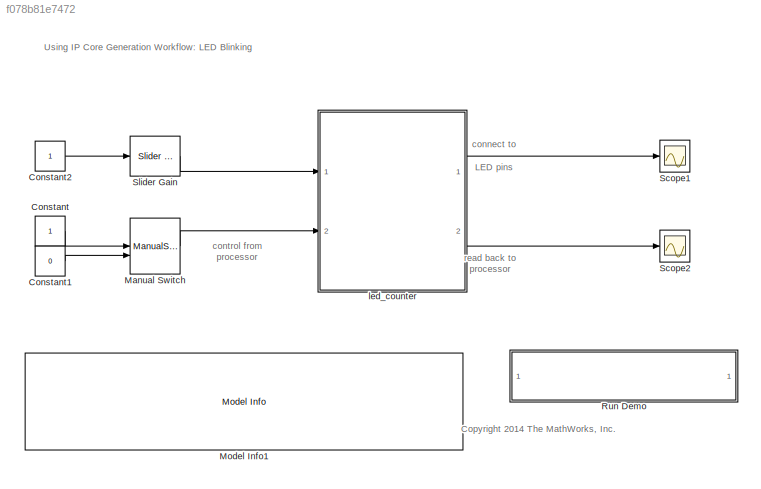
MODEL slx_f078b81e7472
KIND model
CONFIG AbsTol = auto
CONFIG FixedStep = auto
CONFIG InitFcn = Ts = 1e-3;
CONFIG MaxStep = auto
CONFIG MinStep = auto
CONFIG RelTol = 1e-3
CONFIG SampleTimeConstraint = Unconstrained
CONFIG Solver = VariableStepAuto
CONFIG SolverMode = Auto
CONFIG SolverName = VariableStepAuto
CONFIG StartTime = 0.0
CONFIG StopTime = 10.0
BLOCK [Constant] Constant
  OutDataTypeStr = boolean
  SampleTime = Ts
BLOCK [Constant] Constant1
  OutDataTypeStr = boolean
  SampleTime = Ts
  Value = 0
BLOCK [Constant] Constant2
  OutDataTypeStr = fixdt(0, 4, 0)
  SampleTime = Ts
BLOCK [ManualSwitch] Manual Switch
BLOCK [Reference] Model Info1  REF=simulink/Model-Wide
Utilities/Model Info
  Ports = []
  SourceBlock = simulink/Model-Wide\nUtilities/Model Info
  SourceType = CMBlock
BLOCK [SubSystem] Run Demo
  OpenFcn = hdladvisor([bdroot, '/led_counter'])
  Ports = []
  RequestExecContextInheritance = off
  Variant = off
BLOCK [Scope] Scope1
  Ports = [1]
  ScopeSpecificationString = Simulink.scopes.TimeScopeBlockCfg('CurrentConfiguration', extmgr.ConfigurationSet(extmgr.Configuration('Core','General UI',true),extmgr.Configuration('Core','Source UI',true),extmgr.Configuration('Sources','WiredSimulink',true,'DataLoggingVariableName','ScopeData1','DataLoggingSaveFormat','StructureWithTime','DataLoggingDecimation','1','DataLoggingDecimateData',true),extmgr.Configuration('Visuals'...<+1643ch>
BLOCK [Scope] Scope2
  Ports = [1]
  ScopeSpecificationString = Simulink.scopes.TimeScopeBlockCfg('CurrentConfiguration', extmgr.ConfigurationSet(extmgr.Configuration('Core','General UI',true),extmgr.Configuration('Core','Source UI',true),extmgr.Configuration('Sources','WiredSimulink',true,'DataLoggingSaveFormat','StructureWithTime','DataLoggingDecimation','1','DataLoggingDecimateData',true),extmgr.Configuration('Visuals','Time Domain',true,'SerializedDisplays...<+1611ch>
BLOCK [Reference] Slider Gain  REF=simulink/Math
Operations/Slider
Gain
  Ports = [1, 1]
  SourceBlock = simulink/Math\nOperations/Slider\nGain
  SourceType = Slider Gain
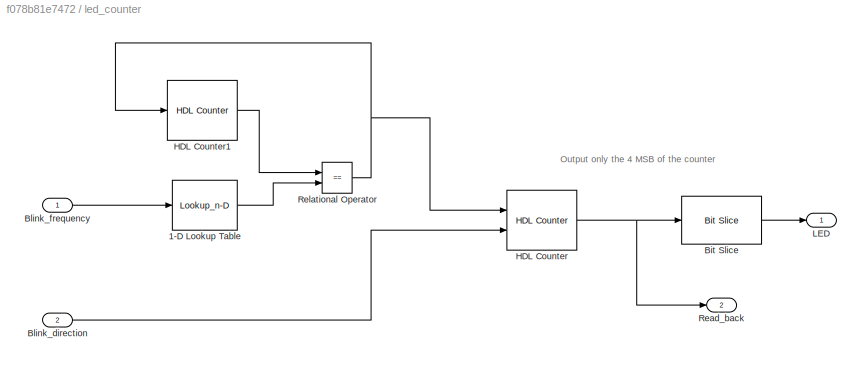
BLOCK [SubSystem] led_counter
  Ports = [2, 2]
  RequestExecContextInheritance = off
  TreatAsAtomicUnit = on
  Variant = off
BLOCK [Lookup_n-D] led_counter/1-D Lookup Table
  BreakpointsForDimension1 = [0:15]
  DiagnosticForOutOfRangeInput = Error
  IndexSearchMethod = Evenly spaced points
  InterpMethod = Flat
  NumberOfTableDimensions = 1
  OutDataTypeStr = fixdt(0, 24, 0)
  Ports = [1, 1]
  RndMeth = Simplest
  Table = 2.^[23:-1:8]
  TableDataTypeStr = fixdt(0, 24, 0)
BLOCK [Reference] led_counter/Bit Slice  REF=hdlsllib/HDL Operations/Bit Slice
  Ports = [1, 1]
  SourceBlock = hdlsllib/HDL Operations/Bit Slice
  SourceType = Bit Slice
BLOCK [Inport] led_counter/Blink_direction
  IconDisplay = Port number
  OutDataTypeStr = boolean
  Port = 2
BLOCK [Inport] led_counter/Blink_frequency
  IconDisplay = Port number
  OutDataTypeStr = fixdt(0, 4, 0)
BLOCK [Reference] led_counter/HDL Counter  REF=hdlsllib/HDL Operations/HDL Counter
  Ports = [2, 1]
  SourceBlock = hdlsllib/HDL Operations/HDL Counter
  SourceType = HDL Counter
BLOCK [Reference] led_counter/HDL Counter1  REF=hdlsllib/HDL Operations/HDL Counter
  Ports = [1, 1]
  SourceBlock = hdlsllib/HDL Operations/HDL Counter
  SourceType = HDL Counter
BLOCK [Outport] led_counter/LED
  IconDisplay = Port number
BLOCK [Outport] led_counter/Read_back
  IconDisplay = Port number
  Port = 2
BLOCK [RelationalOperator] led_counter/Relational Operator
  InputSameDT = off
  Operator = ==
  OutDataTypeStr = boolean
  Ports = [2, 1]
ANNOTATION (root): <copyright redacted>
ANNOTATION (root): Using IP Core Generation Workflow: LED Blinking
ANNOTATION (root): connect to LED pins
ANNOTATION (root): control from processor
ANNOTATION (root): read back to processor
ANNOTATION led_counter: Output only the 4 MSB of the counter
LINE Constant1:1 -> Manual Switch:2
LINE Constant2:1 -> Slider Gain:1
LINE Constant:1 -> Manual Switch:1
LINE Manual Switch:1 -> led_counter:2
LINE Slider Gain:1 -> led_counter:1
LINE led_counter/1-D Lookup Table:1 -> led_counter/Relational Operator:2
LINE led_counter/Bit Slice:1 -> led_counter/LED:1
LINE led_counter/Blink_direction:1 -> led_counter/HDL Counter:2
LINE led_counter/Blink_frequency:1 -> led_counter/1-D Lookup Table:1
LINE led_counter/HDL Counter1:1 -> led_counter/Relational Operator:1
NET led_counter/HDL Counter:1 -> led_counter/Bit Slice:1, led_counter/Read_back:1
NET led_counter/Relational Operator:1 -> led_counter/HDL Counter1:1, led_counter/HDL Counter:1
LINE led_counter:1 -> Scope1:1
LINE led_counter:2 -> Scope2:1
note: NET lines group one-source signal fan-out (src -> all destinations, sorted); 1:1 wires keep LINE
